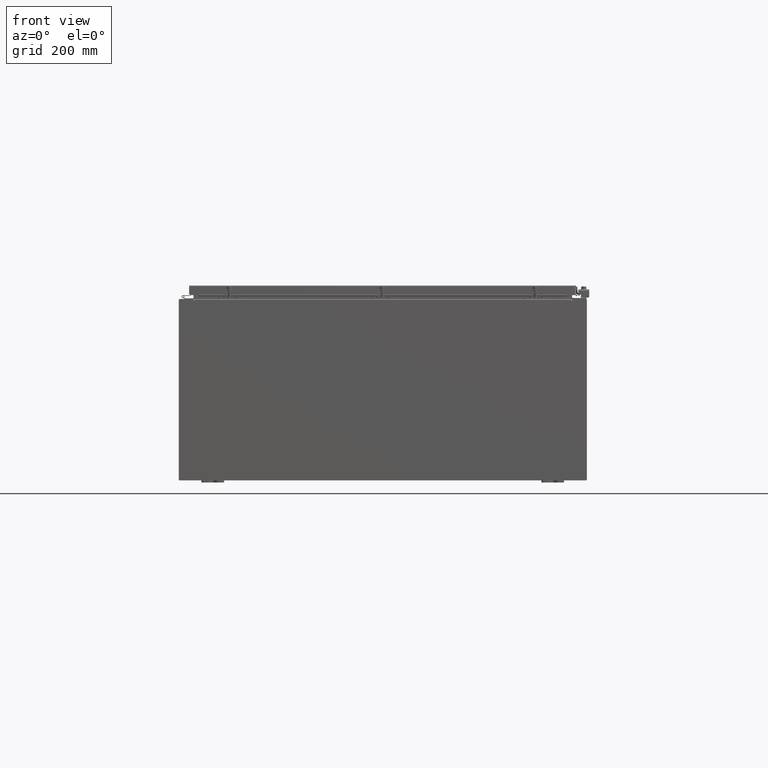
[diagram: clean part render]
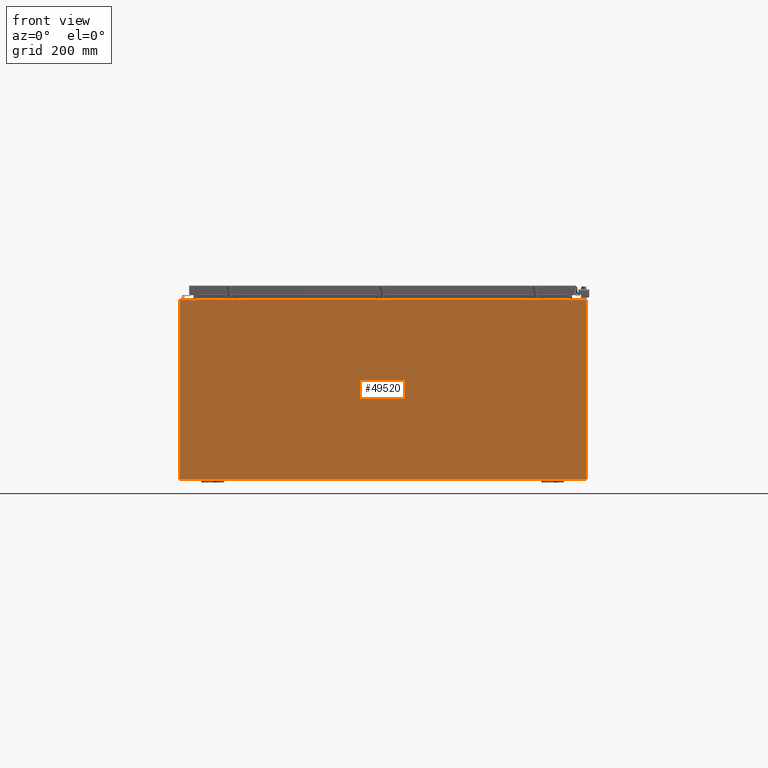
[diagram: same view with one face highlighted and labeled with its STEP entity id]
A machine part, front view. The second image highlights one B-rep face of the part: STEP entity #49520.
In plain terms, the highlighted planar face has unit normal (-0, 1, -0).
Its self-contained STEP definition (entity closure, byte-faithful):
#1614 = ORIENTED_EDGE ( 'NONE', *, *, #2758, .F. ) ;
#1627 = CARTESIAN_POINT ( 'NONE',  ( -17.92530000000000000, 0.0000000000000000000, 7.925300000000001800 ) ) ;
#2102 = DIRECTION ( 'NONE',  ( 0.0000000000000000000, 0.0000000000000000000, -1.000000000000000000 ) ) ;
#2758 = EDGE_CURVE ( 'NONE', #5365, #23822, #5950, .T. ) ;
#5365 = VERTEX_POINT ( 'NONE', #16033 ) ;
#5879 = LINE ( 'NONE', #16382, #26803 ) ;
#5950 = CIRCLE ( 'NONE', #9251, 0.01867499999999949400 ) ;
#6370 = CARTESIAN_POINT ( 'NONE',  ( 16.63720000000000400, 0.0000000000000000000, 7.912300000000001900 ) ) ;
#6756 = DIRECTION ( 'NONE',  ( 0.0000000000000000000, 0.0000000000000000000, -1.000000000000000000 ) ) ;
#7170 = VERTEX_POINT ( 'NONE', #8021 ) ;
#7704 = EDGE_CURVE ( 'NONE', #35055, #42115, #51618, .T. ) ;
#7916 = VECTOR ( 'NONE', #20018, 39.37007874015748100 ) ;
#8021 = CARTESIAN_POINT ( 'NONE',  ( -16.67455000000000000, 0.0000000000000000000, 7.874950000000001900 ) ) ;
#8222 = DIRECTION ( 'NONE',  ( 0.0000000000000000000, 0.0000000000000000000, -1.000000000000000000 ) ) ;
#9026 = CARTESIAN_POINT ( 'NONE',  ( -16.65587500000000200, 0.0000000000000000000, 7.874950000000001900 ) ) ;
#9226 = LINE ( 'NONE', #40852, #7916 ) ;
#9251 = AXIS2_PLACEMENT_3D ( 'NONE', #34103, #19952, #2102 ) ;
#9972 = VERTEX_POINT ( 'NONE', #17568 ) ;
#11038 = EDGE_CURVE ( 'NONE', #26825, #39307, #15918, .T. ) ;
#11209 = VECTOR ( 'NONE', #13261, 39.37007874015748100 ) ;
#11387 = EDGE_CURVE ( 'NONE', #32114, #7170, #28377, .T. ) ;
#11923 = VECTOR ( 'NONE', #53751, 39.37007874015748100 ) ;
#13171 = DIRECTION ( 'NONE',  ( 0.0000000000000000000, 0.0000000000000000000, -1.000000000000000000 ) ) ;
#13261 = DIRECTION ( 'NONE',  ( 1.000000000000000000, 0.0000000000000000000, -6.096072018129154100E-017 ) ) ;
#13979 = CARTESIAN_POINT ( 'NONE',  ( -17.92530000000000000, 0.0000000000000000000, 7.925300000000001800 ) ) ;
#14122 = EDGE_CURVE ( 'NONE', #23822, #39307, #45211, .T. ) ;
#14950 = DIRECTION ( 'NONE',  ( 0.0000000000000000000, 0.0000000000000000000, 1.000000000000000000 ) ) ;
#15180 = ORIENTED_EDGE ( 'NONE', *, *, #11387, .F. ) ;
#15700 = ORIENTED_EDGE ( 'NONE', *, *, #32448, .F. ) ;
#15918 = LINE ( 'NONE', #35697, #31646 ) ;
#15991 = EDGE_CURVE ( 'NONE', #35055, #5365, #19912, .T. ) ;
#16033 = CARTESIAN_POINT ( 'NONE',  ( 16.67455000000000000, 0.0000000000000000000, 7.874950000000001900 ) ) ;
#16177 = CARTESIAN_POINT ( 'NONE',  ( 16.63720000000000400, 0.0000000000000000000, 0.0000000000000000000 ) ) ;
#16382 = CARTESIAN_POINT ( 'NONE',  ( -16.63720000000000400, -0.0000000000000000000, 0.0000000000000000000 ) ) ;
#17327 = CARTESIAN_POINT ( 'NONE',  ( -17.92530000000000000, 0.0000000000000000000, 7.925300000000001800 ) ) ;
#17475 = EDGE_CURVE ( 'NONE', #7170, #42027, #47235, .T. ) ;
#17494 = DIRECTION ( 'NONE',  ( 0.0000000000000000000, -1.000000000000000000, 0.0000000000000000000 ) ) ;
#17568 = CARTESIAN_POINT ( 'NONE',  ( 17.92530000000000000, 0.0000000000000000000, -7.925299999999997300 ) ) ;
#18253 = CARTESIAN_POINT ( 'NONE',  ( -16.63720000000000400, -0.0000000000000000000, 7.874950000000001900 ) ) ;
#19912 = LINE ( 'NONE', #32554, #51859 ) ;
#19952 = DIRECTION ( 'NONE',  ( -0.0000000000000000000, 1.000000000000000000, -0.0000000000000000000 ) ) ;
#20018 = DIRECTION ( 'NONE',  ( -1.000000000000000000, -0.0000000000000000000, -0.0000000000000000000 ) ) ;
#20753 = EDGE_CURVE ( 'NONE', #44802, #48984, #23417, .T. ) ;
#22591 = AXIS2_PLACEMENT_3D ( 'NONE', #9026, #38188, #13171 ) ;
#23192 = EDGE_LOOP ( 'NONE', ( #24404, #15180, #15700, #37208, #43223, #1614, #38484, #45170, #45101, #52333, #31448, #42645 ) ) ;
#23243 = DIRECTION ( 'NONE',  ( 1.000000000000000000, 0.0000000000000000000, -6.096072018129154100E-017 ) ) ;
#23339 = CARTESIAN_POINT ( 'NONE',  ( 17.92530000000000000, 0.0000000000000000000, 7.925300000000000000 ) ) ;
#23417 = LINE ( 'NONE', #17327, #34494 ) ;
#23822 = VERTEX_POINT ( 'NONE', #52571 ) ;
#24404 = ORIENTED_EDGE ( 'NONE', *, *, #17475, .F. ) ;
#25323 = CARTESIAN_POINT ( 'NONE',  ( -16.67455000000000000, 0.0000000000000000000, 7.925300000000001800 ) ) ;
#26803 = VECTOR ( 'NONE', #8222, 39.37007874015748100 ) ;
#26825 = VERTEX_POINT ( 'NONE', #27949 ) ;
#27295 = FACE_OUTER_BOUND ( 'NONE', #23192, .T. ) ;
#27949 = CARTESIAN_POINT ( 'NONE',  ( -16.63720000000000400, -2.356218894535426900E-015, 7.912300000000008100 ) ) ;
#28377 = CIRCLE ( 'NONE', #22591, 0.01867499999999949400 ) ;
#30327 = LINE ( 'NONE', #39833, #38751 ) ;
#31448 = ORIENTED_EDGE ( 'NONE', *, *, #20753, .T. ) ;
#31646 = VECTOR ( 'NONE', #52243, 39.37007874015748100 ) ;
#32114 = VERTEX_POINT ( 'NONE', #18253 ) ;
#32448 = EDGE_CURVE ( 'NONE', #26825, #32114, #5879, .T. ) ;
#32554 = CARTESIAN_POINT ( 'NONE',  ( 16.67454999999931800, -0.0000000000000000000, -1.447541957108381700E-012 ) ) ;
#32729 = DIRECTION ( 'NONE',  ( -8.681145560800387200E-014, 0.0000000000000000000, -1.000000000000000000 ) ) ;
#32760 = EDGE_CURVE ( 'NONE', #42115, #9972, #44338, .T. ) ;
#33240 = VECTOR ( 'NONE', #6756, 39.37007874015748100 ) ;
#34103 = CARTESIAN_POINT ( 'NONE',  ( 16.65587500000000200, 0.0000000000000000000, 7.874950000000001900 ) ) ;
#34494 = VECTOR ( 'NONE', #42360, 39.37007874015748100 ) ;
#34507 = CARTESIAN_POINT ( 'NONE',  ( -17.92530000000000000, 0.0000000000000000000, -7.925299999999997300 ) ) ;
#35055 = VERTEX_POINT ( 'NONE', #36825 ) ;
#35697 = CARTESIAN_POINT ( 'NONE',  ( -16.63720000000000400, -2.356218894535426900E-015, 7.912300000000008100 ) ) ;
#36175 = VECTOR ( 'NONE', #14950, 39.37007874015748100 ) ;
#36825 = CARTESIAN_POINT ( 'NONE',  ( 16.67455000000000700, 0.0000000000000000000, 7.925300000000000000 ) ) ;
#37208 = ORIENTED_EDGE ( 'NONE', *, *, #11038, .T. ) ;
#38188 = DIRECTION ( 'NONE',  ( -0.0000000000000000000, 1.000000000000000000, -0.0000000000000000000 ) ) ;
#38329 = PLANE ( 'NONE',  #48777 ) ;
#38484 = ORIENTED_EDGE ( 'NONE', *, *, #15991, .F. ) ;
#38751 = VECTOR ( 'NONE', #23243, 39.37007874015748100 ) ;
#39307 = VERTEX_POINT ( 'NONE', #6370 ) ;
#39833 = CARTESIAN_POINT ( 'NONE',  ( -17.92530000000000000, 0.0000000000000000000, 7.925300000000001800 ) ) ;
#40852 = CARTESIAN_POINT ( 'NONE',  ( -17.92530000000000000, 0.0000000000000000000, -7.925299999999997300 ) ) ;
#42027 = VERTEX_POINT ( 'NONE', #25323 ) ;
#42115 = VERTEX_POINT ( 'NONE', #46795 ) ;
#42360 = DIRECTION ( 'NONE',  ( -0.0000000000000000000, -0.0000000000000000000, 1.000000000000000000 ) ) ;
#42540 = CARTESIAN_POINT ( 'NONE',  ( 0.0000000000000000000, 0.0000000000000000000, 0.0000000000000000000 ) ) ;
#42645 = ORIENTED_EDGE ( 'NONE', *, *, #51691, .T. ) ;
#43223 = ORIENTED_EDGE ( 'NONE', *, *, #14122, .F. ) ;
#44338 = LINE ( 'NONE', #23339, #33240 ) ;
#44802 = VERTEX_POINT ( 'NONE', #34507 ) ;
#45101 = ORIENTED_EDGE ( 'NONE', *, *, #32760, .T. ) ;
#45170 = ORIENTED_EDGE ( 'NONE', *, *, #7704, .T. ) ;
#45211 = LINE ( 'NONE', #16177, #11923 ) ;
#46710 = DIRECTION ( 'NONE',  ( 0.0000000000000000000, -0.0000000000000000000, -1.000000000000000000 ) ) ;
#46795 = CARTESIAN_POINT ( 'NONE',  ( 17.92530000000000000, 0.0000000000000000000, 7.925300000000000000 ) ) ;
#47221 = EDGE_CURVE ( 'NONE', #9972, #44802, #9226, .T. ) ;
#47235 = LINE ( 'NONE', #48150, #36175 ) ;
#48150 = CARTESIAN_POINT ( 'NONE',  ( -16.67455000000000000, -0.0000000000000000000, 0.0000000000000000000 ) ) ;
#48777 = AXIS2_PLACEMENT_3D ( 'NONE', #42540, #17494, #46710 ) ;
#48984 = VERTEX_POINT ( 'NONE', #1627 ) ;
#49520 = ADVANCED_FACE ( 'NONE', ( #27295 ), #38329, .F. ) ;
#51618 = LINE ( 'NONE', #13979, #11209 ) ;
#51691 = EDGE_CURVE ( 'NONE', #48984, #42027, #30327, .T. ) ;
#51859 = VECTOR ( 'NONE', #32729, 39.37007874015748100 ) ;
#52243 = DIRECTION ( 'NONE',  ( 1.000000000000000000, 0.0000000000000000000, 0.0000000000000000000 ) ) ;
#52333 = ORIENTED_EDGE ( 'NONE', *, *, #47221, .T. ) ;
#52571 = CARTESIAN_POINT ( 'NONE',  ( 16.63720000000000400, 0.0000000000000000000, 7.874950000000001900 ) ) ;
#53751 = DIRECTION ( 'NONE',  ( 0.0000000000000000000, 0.0000000000000000000, 1.000000000000000000 ) ) ;